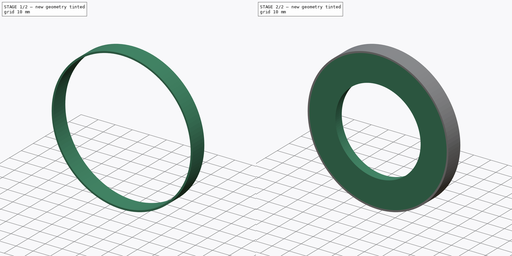
[diagram: build sequence overview — one tinted view per stage of 2, left to right]
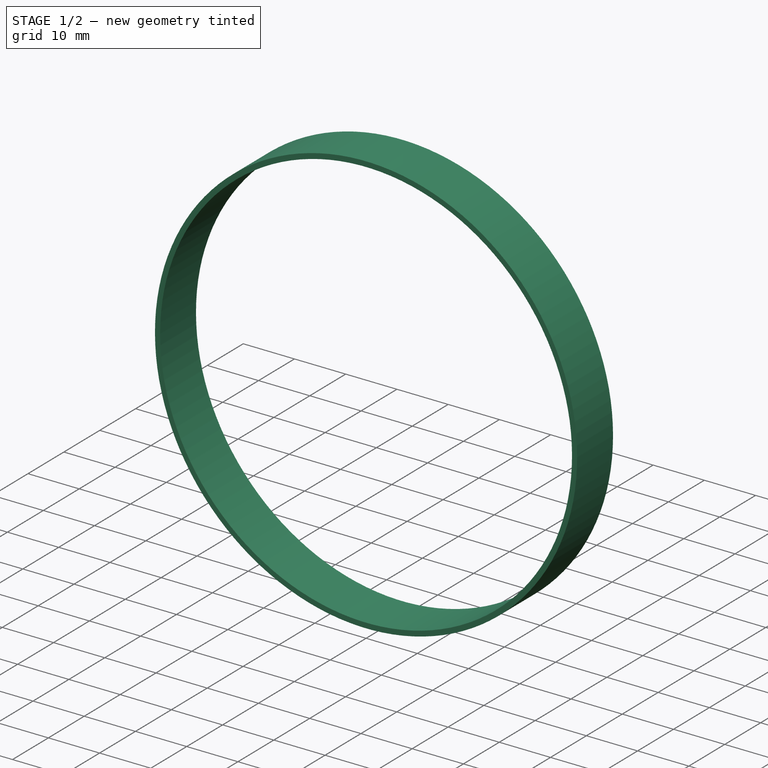
[diagram: stage 1 of 2 — iso view after this stage's code; geometry added in this stage tinted green]
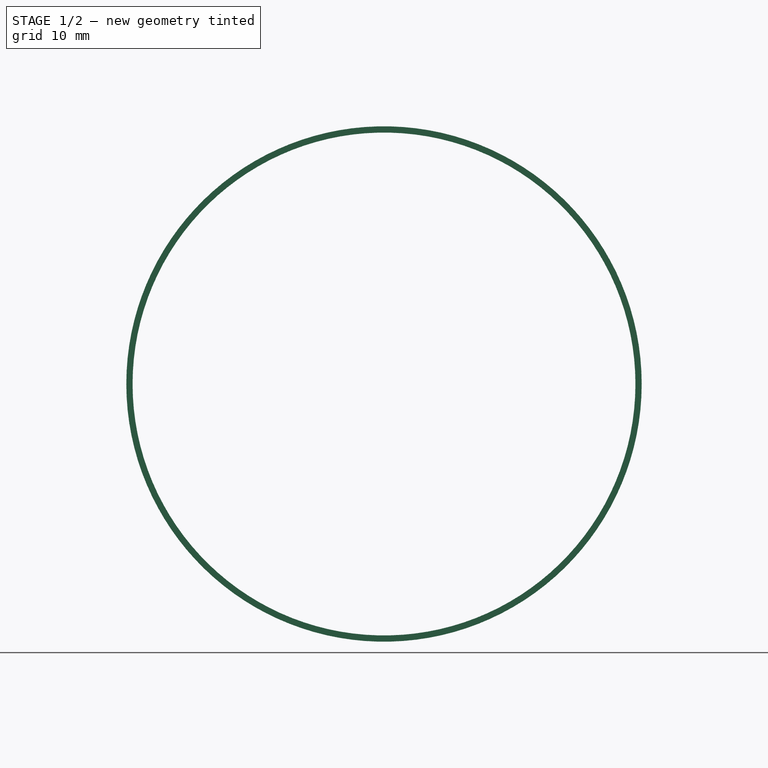
[diagram: stage 1 of 2 — front view after this stage's code; geometry added in this stage tinted green]
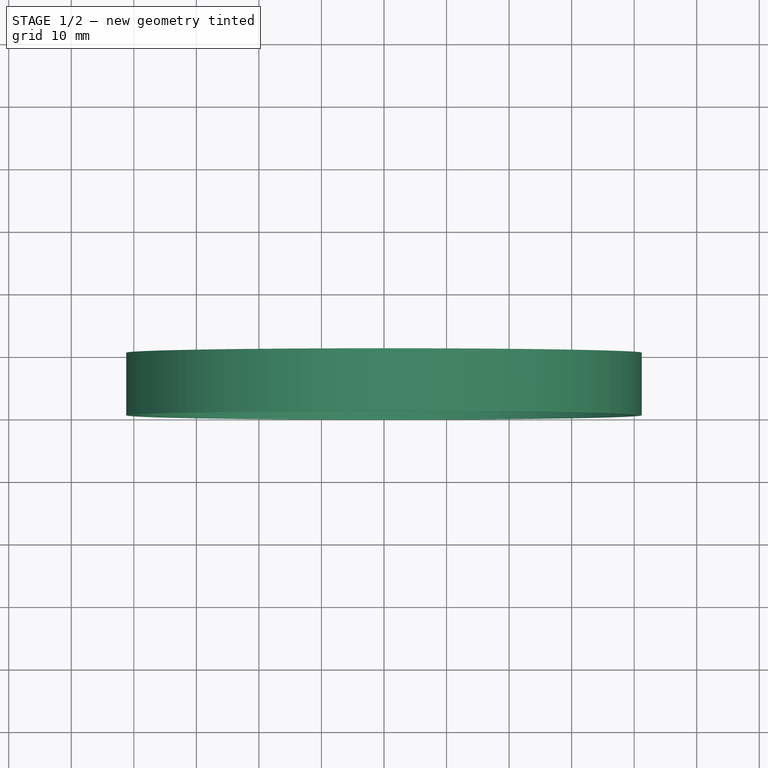
[diagram: stage 1 of 2 — top view after this stage's code; geometry added in this stage tinted green]
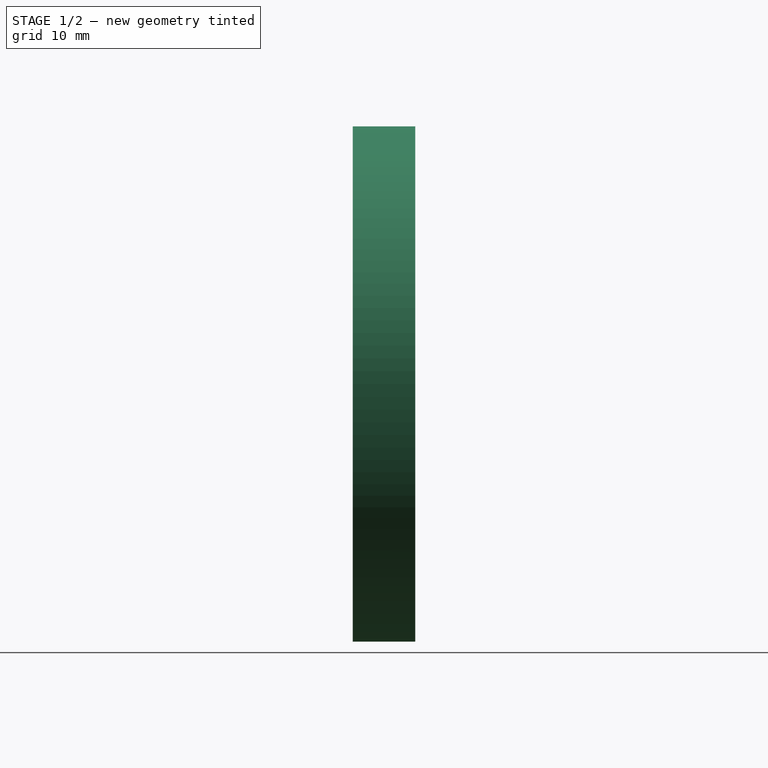
[diagram: stage 1 of 2 — right view after this stage's code; geometry added in this stage tinted green]
FCSTD DOCUMENT  (FreeCAD 0.17R13515 (Git))
Label: primary
License: All rights reserved
LicenseURL: http://en.wikipedia.org/wiki/All_rights_reserved
objects: Sketcher::SketchObject×2, PartDesign::Revolution×2, PartDesign::Body×2
note: 8 computed .brp shape members not serialized (recipe doc carries the construction recipe); baked Part::Feature solids carry a one-line shape summary decoded from their .brp

FEATURE [PartDesign::Body] Body
  Group = -> [Sketch,Revolution]
  Origin = -> Origin
  Tip = -> Revolution
FEATURE [Sketcher::SketchObject] Sketch002
  MapMode = 5
  Support = -> [XY_Plane001]
  sketch-geometry (5):
    g0: GeomPoint X=-40.2 Y=0 Z=0
    g1: LineSegment StartX=-40.2 StartY=0 StartZ=0 EndX=-41.2 EndY=0 EndZ=0
    g2: LineSegment StartX=-40.2 StartY=0 StartZ=0 EndX=-40.2 EndY=10 EndZ=0
    g3: LineSegment StartX=-41.2 StartY=0 StartZ=0 EndX=-41.2 EndY=10 EndZ=0
    g4: LineSegment StartX=-41.2 StartY=10 StartZ=0 EndX=-40.2 EndY=10 EndZ=0
  constraints (13):
    c: DistanceX(g0,g-1) = 40.2
    c: DistanceY(g-1,g0) = 0
    c: Coincident(g1,g0)
    c: Horizontal(g1)
    c: DistanceX(g1,g1) = 1
    c: Coincident(g2,g0)
    c: Vertical(g2)
    c: DistanceY(g2,g2) = 10
    c: Coincident(g3,g1)
    c: Vertical(g3)
    c: Coincident(g4,g3)
    c: Coincident(g4,g2)
    c: Horizontal(g4)
FEATURE [PartDesign::Revolution] Revolution001
  Angle = 360
  Axis = (0,1,0)
  Base = (0,0,0)
  Profile = -> Sketch002
  ReferenceAxis = -> Sketch002 [V_Axis]
FEATURE [PartDesign::Body] Body001
  Group = -> [Sketch002,Revolution001]
  Origin = -> Origin001
  Tip = -> Revolution001
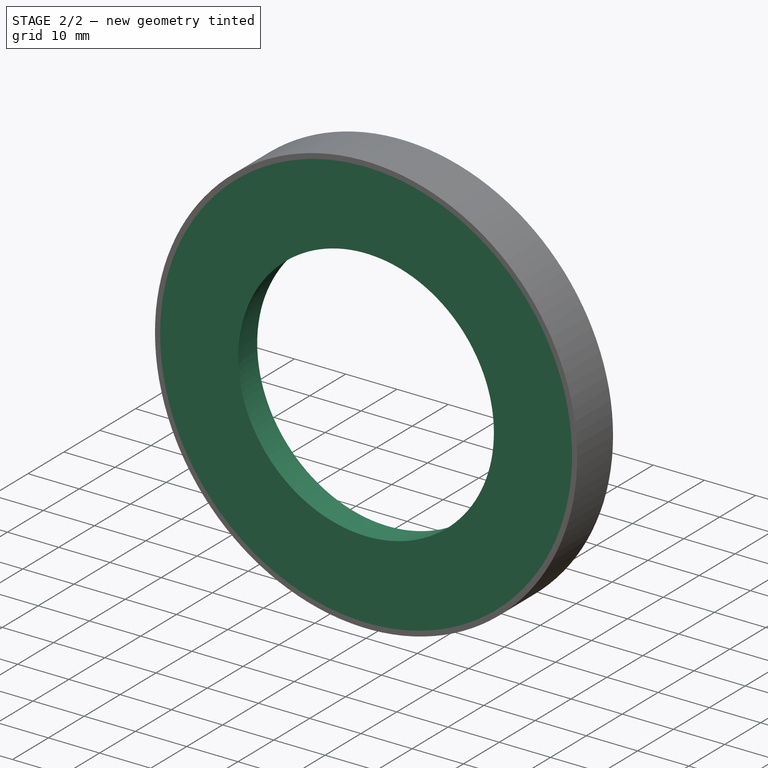
[diagram: stage 2 of 2 — iso view after this stage's code; geometry added in this stage tinted green]
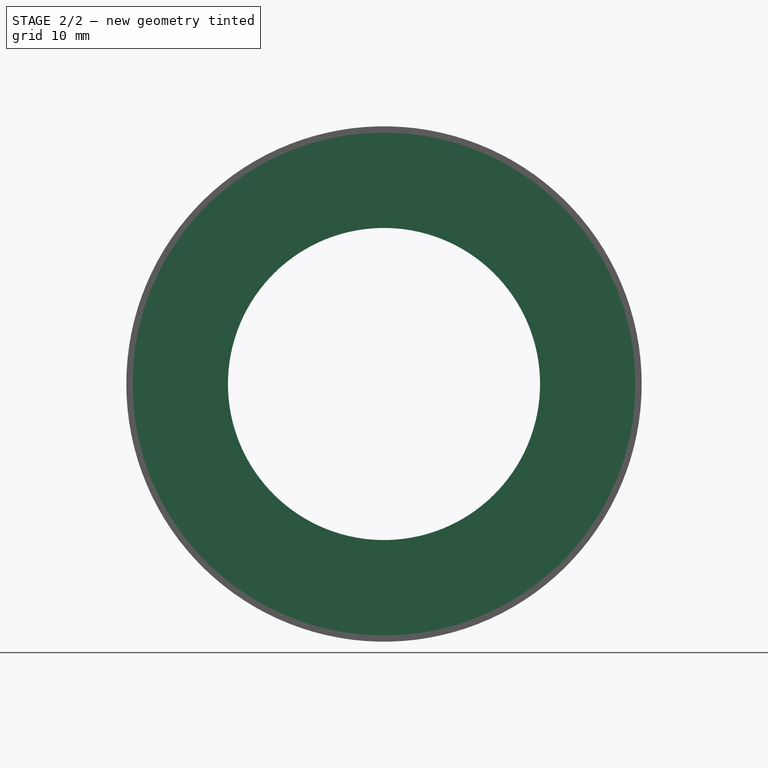
[diagram: stage 2 of 2 — front view after this stage's code; geometry added in this stage tinted green]
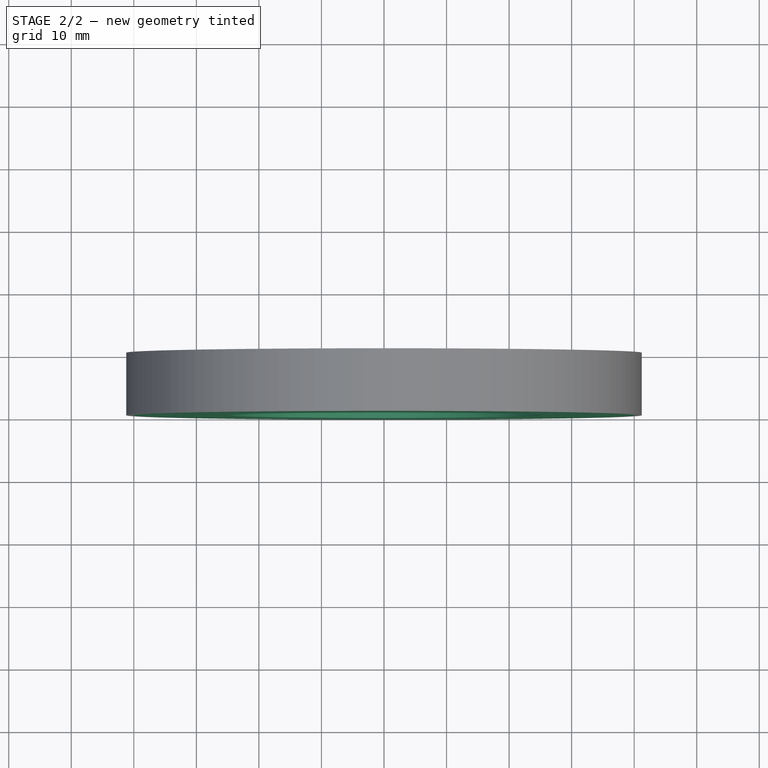
[diagram: stage 2 of 2 — top view after this stage's code; geometry added in this stage tinted green]
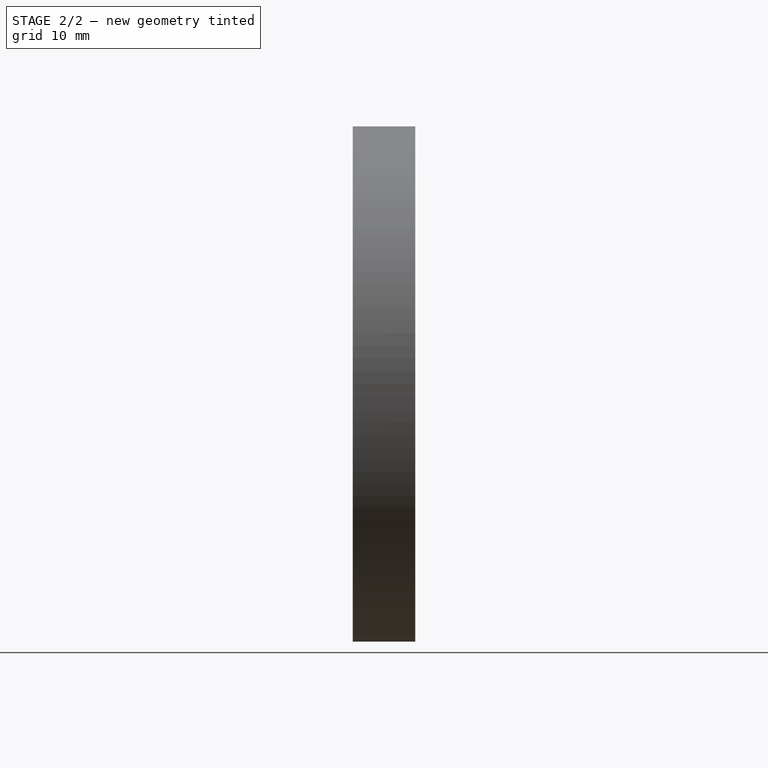
[diagram: stage 2 of 2 — right view after this stage's code; geometry added in this stage tinted green]
FEATURE [Sketcher::SketchObject] Sketch
  MapMode = 5
  Support = -> [XY_Plane]
  sketch-geometry (11):
    g0: GeomPoint X=-40.2 Y=2.03039e-06 Z=0
    g1: LineSegment StartX=-40.2 StartY=2.03039e-06 StartZ=0 EndX=-41.2 EndY=2.03039e-06 EndZ=0
    g2: LineSegment StartX=-40.2 StartY=2.03039e-06 StartZ=0 EndX=-40.2 EndY=3.85967e-06 EndZ=0
    g3: LineSegment StartX=-41.2 StartY=2.03039e-06 StartZ=0 EndX=-41.2 EndY=1.5 EndZ=0
    g4: LineSegment StartX=-40.2 StartY=3.85967e-06 StartZ=0 EndX=-24.95 EndY=3.85967e-06 EndZ=0
    g5: LineSegment StartX=-24.95 StartY=3.85967e-06 StartZ=0 EndX=-24.95 EndY=1 EndZ=0
    g6: LineSegment StartX=-24.95 StartY=1 StartZ=0 EndX=-25.45 EndY=1 EndZ=0
    g7: LineSegment StartX=-25.45 StartY=1 StartZ=0 EndX=-25.45 EndY=6.00001 EndZ=0
    g8: LineSegment StartX=-25.45 StartY=6.00001 StartZ=0 EndX=-26.95 EndY=6.00001 EndZ=0
    g9: LineSegment StartX=-41.2 StartY=1.5 StartZ=0 EndX=-26.95 EndY=1.5 EndZ=0
    g10: LineSegment StartX=-26.95 StartY=6.00001 StartZ=0 EndX=-26.95 EndY=1.5 EndZ=0
  constraints (31):
    c: DistanceX(g0,g-1) = 40.2
    c: DistanceY(g-1,g0) = 0
    c: Coincident(g1,g0)
    c: Horizontal(g1)
    c: DistanceX(g1,g1) = 1
    c: Coincident(g2,g0)
    c: Vertical(g2)
    c: DistanceY(g2,g2) = 0
    c: Coincident(g3,g1)
    c: Vertical(g3)
    c: Coincident(g4,g2)
    c: Horizontal(g4)
    c: Coincident(g5,g4)
    c: Vertical(g5)
    c: DistanceY(g5,g5) = 1
    c: Coincident(g6,g5)
    c: Horizontal(g6)
    c: DistanceX(g6,g6) = 0.5
    c: Coincident(g7,g6)
    c: Vertical(g7)
    c: DistanceY(g7,g7) = 5
    c: Coincident(g8,g7)
    c: Horizontal(g8)
    c: DistanceY(g3,g2) = -1.5
    c: DistanceX(g8,g8) = 1.5
    c: Coincident(g9,g3)
    c: Horizontal(g9)
    c: Vertical(g10)
    c: Coincident(g9,g10)
    c: Coincident(g10,g8)
    c: DistanceX(g6,g-1) = 25.45
FEATURE [PartDesign::Revolution] Revolution
  Angle = 360
  Axis = (0,1,0)
  Base = (0,0,0)
  Profile = -> Sketch
  ReferenceAxis = -> Sketch [V_Axis]
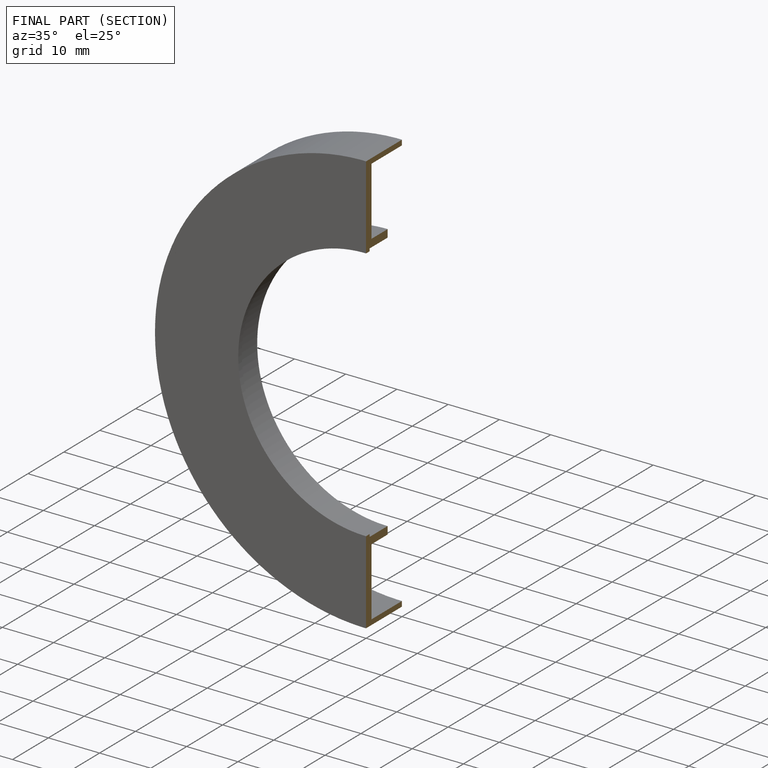
[diagram: finished part — half-section view (interior)]
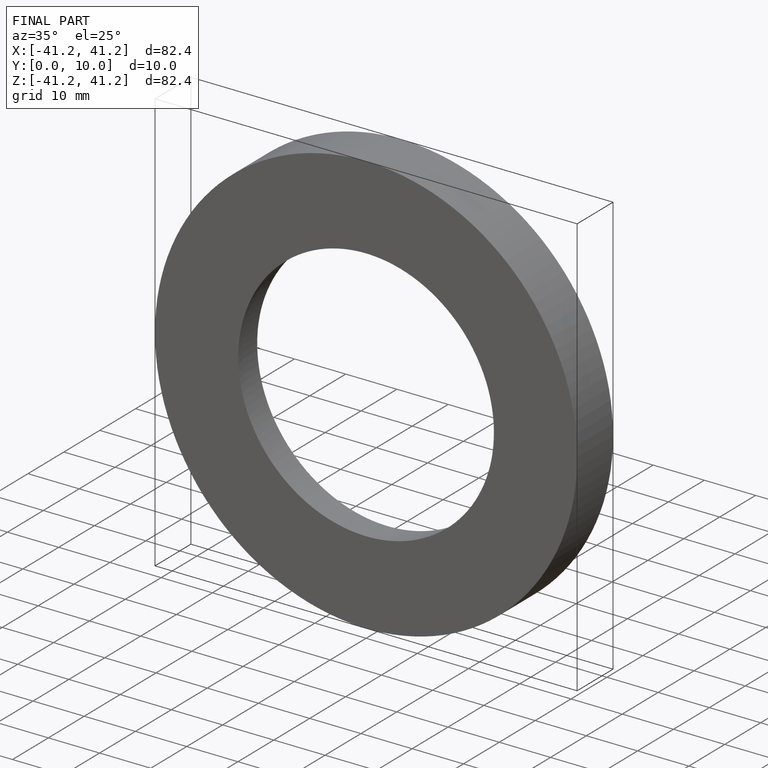
[diagram: finished part — iso view with bounding-box wireframe]
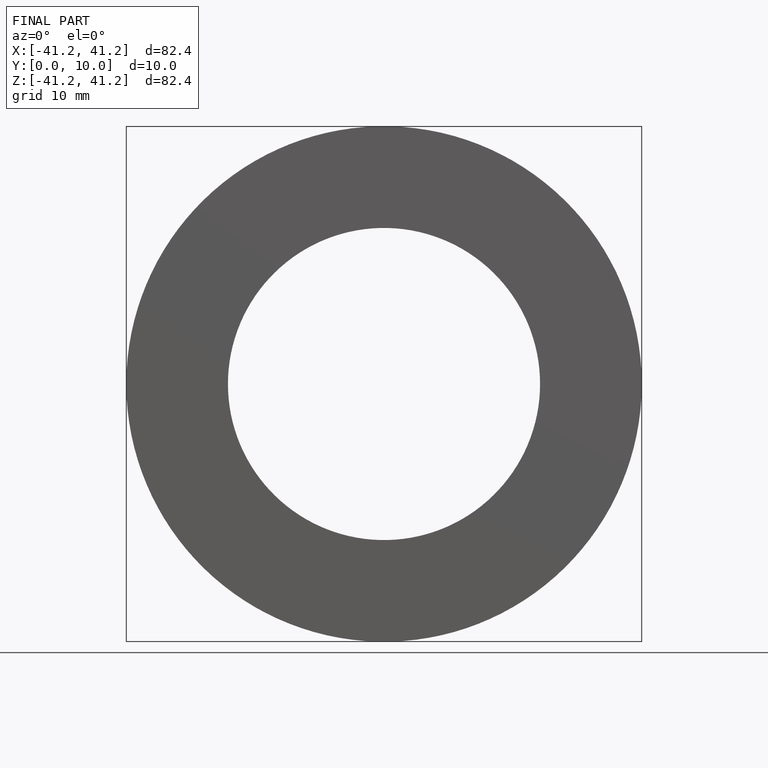
[diagram: finished part — front view with bounding-box wireframe]
